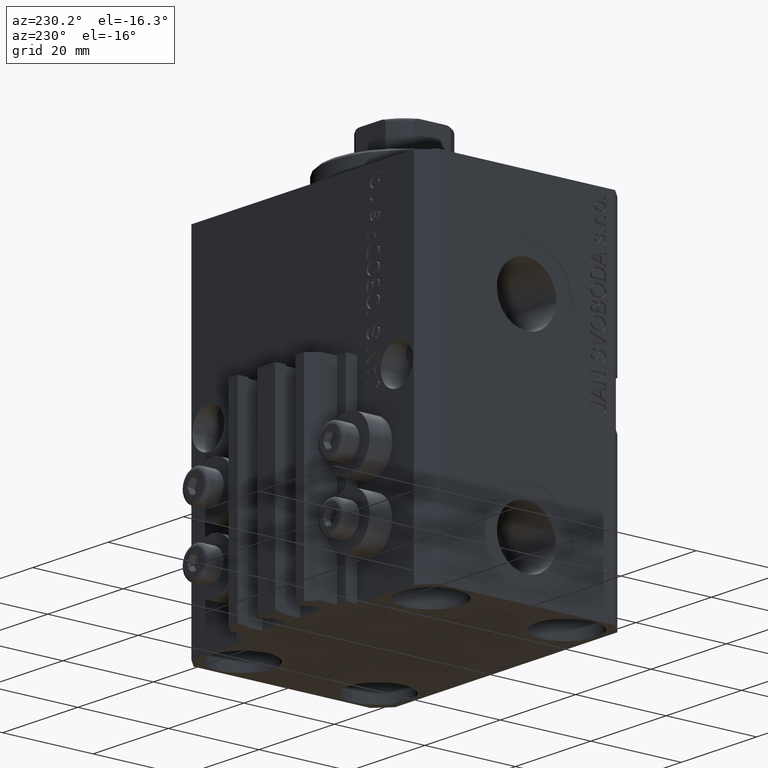
[diagram: clean part render]
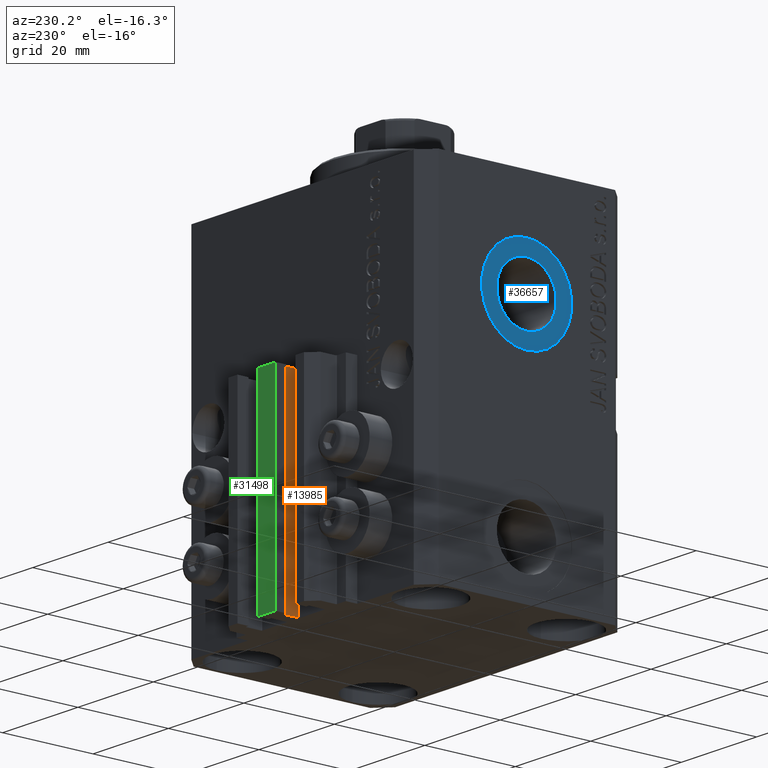
[diagram: same view with three faces highlighted in distinct colors, each labeled with its STEP entity id]
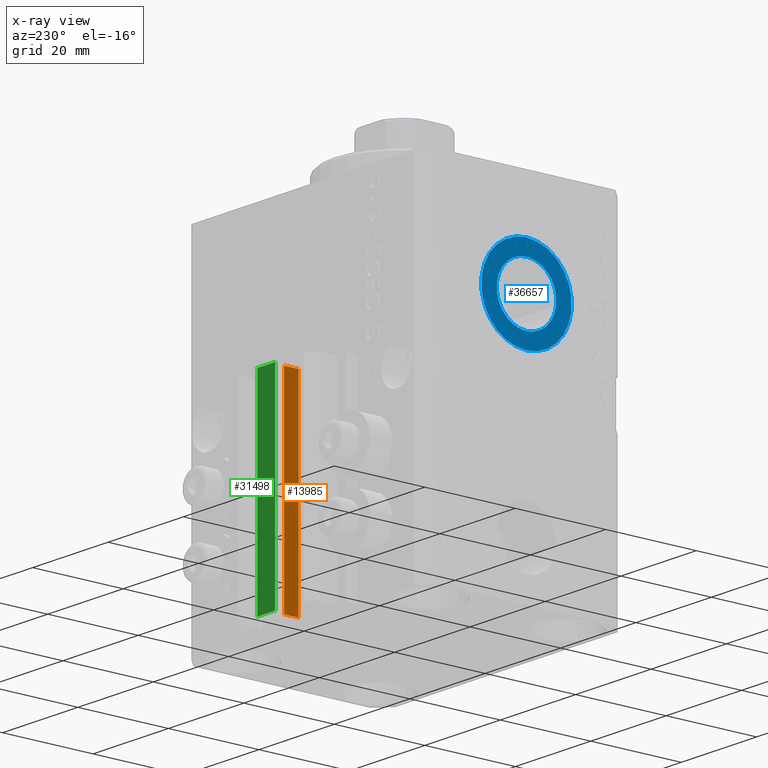
[diagram: x-ray of the same camera — body ghosted, the three highlighted faces saturated]
A machine part, auxiliary view with three faces highlighted in distinct colors.
The next image is the same camera in x-ray (body ghosted, the three faces saturated) — at least one of them is partly hidden behind the body in this view.
Their STEP definitions:

[orange] entity #13985 — the highlighted planar face has unit normal (-1, 0, 0).
#1227 = LINE ( 'NONE', #4572, #13105 ) ;
#1861 = LINE ( 'NONE', #27383, #38176 ) ;
#4572 = CARTESIAN_POINT ( 'NONE',  ( -1.600000000000000533, 27.89999999999950120, -33.00000000000000000 ) ) ;
#9751 = DIRECTION ( 'NONE',  ( -1.000000000000000000, 6.776263578034385456E-17, 0.000000000000000000 ) ) ;
#10214 = CARTESIAN_POINT ( 'NONE',  ( -1.600000000000000533, 27.89999999999950120, -77.00000000000000000 ) ) ;
#10689 = DIRECTION ( 'NONE',  ( -6.776263578034385456E-17, -1.000000000000000000, 0.000000000000000000 ) ) ;
#11161 = CARTESIAN_POINT ( 'NONE',  ( -1.600000000000000755, 24.69999999999949480, -77.00000000000000000 ) ) ;
#12447 = DIRECTION ( 'NONE',  ( -6.776263578034385456E-17, -1.000000000000000000, 0.000000000000000000 ) ) ;
#13009 = VECTOR ( 'NONE', #26480, 1000.000000000000000 ) ;
#13105 = VECTOR ( 'NONE', #12447, 1000.000000000000000 ) ;
#13570 = DIRECTION ( 'NONE',  ( 0.000000000000000000, 0.000000000000000000, 1.000000000000000000 ) ) ;
#13985 = ADVANCED_FACE ( 'NONE', ( #46217 ), #24042, .T. ) ;
#18466 = ORIENTED_EDGE ( 'NONE', *, *, #41684, .T. ) ;
#20019 = CARTESIAN_POINT ( 'NONE',  ( -1.600000000000003197, 27.89999999999950120, -77.00000000000000000 ) ) ;
#23778 = VERTEX_POINT ( 'NONE', #30183 ) ;
#24042 = PLANE ( 'NONE',  #37775 ) ;
#24511 = DIRECTION ( 'NONE',  ( -6.776263578034385456E-17, -1.000000000000000000, 0.000000000000000000 ) ) ;
#26179 = EDGE_LOOP ( 'NONE', ( #28960, #27192, #18466, #27483 ) ) ;
#26480 = DIRECTION ( 'NONE',  ( 0.000000000000000000, 0.000000000000000000, 1.000000000000000000 ) ) ;
#27192 = ORIENTED_EDGE ( 'NONE', *, *, #33828, .F. ) ;
#27383 = CARTESIAN_POINT ( 'NONE',  ( -1.600000000000003197, 27.89999999999950120, -77.00000000000000000 ) ) ;
#27483 = ORIENTED_EDGE ( 'NONE', *, *, #31551, .T. ) ;
#28960 = ORIENTED_EDGE ( 'NONE', *, *, #34832, .F. ) ;
#29489 = CARTESIAN_POINT ( 'NONE',  ( -1.600000000000000533, 27.89999999999950120, -77.00000000000000000 ) ) ;
#29957 = LINE ( 'NONE', #29489, #44609 ) ;
#30054 = VERTEX_POINT ( 'NONE', #20019 ) ;
#30183 = CARTESIAN_POINT ( 'NONE',  ( -1.600000000000003197, 27.89999999999950120, -33.00000000000000000 ) ) ;
#31551 = EDGE_CURVE ( 'NONE', #38864, #39184, #44853, .T. ) ;
#33828 = EDGE_CURVE ( 'NONE', #30054, #23778, #1861, .T. ) ;
#34832 = EDGE_CURVE ( 'NONE', #23778, #39184, #1227, .T. ) ;
#37775 = AXIS2_PLACEMENT_3D ( 'NONE', #10214, #9751, #24511 ) ;
#38176 = VECTOR ( 'NONE', #13570, 1000.000000000000000 ) ;
#38864 = VERTEX_POINT ( 'NONE', #11161 ) ;
#39184 = VERTEX_POINT ( 'NONE', #46876 ) ;
#41684 = EDGE_CURVE ( 'NONE', #30054, #38864, #29957, .T. ) ;
#44609 = VECTOR ( 'NONE', #10689, 1000.000000000000000 ) ;
#44614 = CARTESIAN_POINT ( 'NONE',  ( -1.600000000000000755, 24.69999999999949480, -77.00000000000000000 ) ) ;
#44853 = LINE ( 'NONE', #44614, #13009 ) ;
#46217 = FACE_OUTER_BOUND ( 'NONE', #26179, .T. ) ;
#46876 = CARTESIAN_POINT ( 'NONE',  ( -1.600000000000000755, 24.69999999999949480, -33.00000000000000000 ) ) ;

[blue] entity #36657 — the highlighted planar face has unit normal (-1, 0, 0).
#143 = AXIS2_PLACEMENT_3D ( 'NONE', #12875, #31215, #9291 ) ;
#2852 = CARTESIAN_POINT ( 'NONE',  ( -32.39999999999650271, 1.224646799147353059E-15, -32.00000000000000000 ) ) ;
#3265 = CARTESIAN_POINT ( 'NONE',  ( -32.39999999999650271, 0.000000000000000000, -22.00000000000000000 ) ) ;
#3266 = AXIS2_PLACEMENT_3D ( 'NONE', #28108, #13110, #38835 ) ;
#5421 = CARTESIAN_POINT ( 'NONE',  ( -32.39999999999650271, 0.000000000000000000, -11.99999999999999822 ) ) ;
#6143 = ORIENTED_EDGE ( 'NONE', *, *, #31703, .T. ) ;
#6647 = FACE_OUTER_BOUND ( 'NONE', #38841, .T. ) ;
#7492 = VERTEX_POINT ( 'NONE', #5421 ) ;
#7783 = CIRCLE ( 'NONE', #143, 6.579999999999999183 ) ;
#8473 = VERTEX_POINT ( 'NONE', #14066 ) ;
#9040 = CARTESIAN_POINT ( 'NONE',  ( -32.39999999999650271, 0.000000000000000000, -15.41999999999999993 ) ) ;
#9291 = DIRECTION ( 'NONE',  ( 0.000000000000000000, 0.000000000000000000, 1.000000000000000000 ) ) ;
#9545 = CARTESIAN_POINT ( 'NONE',  ( -32.39999999999650271, 0.000000000000000000, -22.00000000000000000 ) ) ;
#12875 = CARTESIAN_POINT ( 'NONE',  ( -32.39999999999650271, 0.000000000000000000, -22.00000000000000000 ) ) ;
#13110 = DIRECTION ( 'NONE',  ( -1.000000000000000000, 0.000000000000000000, 0.000000000000000000 ) ) ;
#14066 = CARTESIAN_POINT ( 'NONE',  ( -32.39999999999650271, 8.058175938389579572E-16, -28.57999999999999829 ) ) ;
#14706 = EDGE_CURVE ( 'NONE', #7492, #32676, #29425, .T. ) ;
#17627 = CARTESIAN_POINT ( 'NONE',  ( -32.39999999999650271, 0.000000000000000000, -22.00000000000000000 ) ) ;
#18760 = ORIENTED_EDGE ( 'NONE', *, *, #35935, .F. ) ;
#22040 = EDGE_LOOP ( 'NONE', ( #18760, #32246 ) ) ;
#23430 = VERTEX_POINT ( 'NONE', #9040 ) ;
#24518 = DIRECTION ( 'NONE',  ( 0.000000000000000000, 0.000000000000000000, 1.000000000000000000 ) ) ;
#24531 = PLANE ( 'NONE',  #3266 ) ;
#24552 = DIRECTION ( 'NONE',  ( 0.000000000000000000, 0.000000000000000000, 1.000000000000000000 ) ) ;
#25157 = AXIS2_PLACEMENT_3D ( 'NONE', #9545, #43605, #24552 ) ;
#26672 = CIRCLE ( 'NONE', #25157, 10.00000000000000000 ) ;
#27864 = FACE_BOUND ( 'NONE', #22040, .T. ) ;
#28108 = CARTESIAN_POINT ( 'NONE',  ( -32.39999999999650271, 0.000000000000000000, -22.00000000000000000 ) ) ;
#29425 = CIRCLE ( 'NONE', #33243, 10.00000000000000000 ) ;
#31215 = DIRECTION ( 'NONE',  ( -1.000000000000000000, 0.000000000000000000, 0.000000000000000000 ) ) ;
#31671 = CIRCLE ( 'NONE', #37759, 6.579999999999999183 ) ;
#31703 = EDGE_CURVE ( 'NONE', #32676, #7492, #26672, .T. ) ;
#32158 = DIRECTION ( 'NONE',  ( 0.000000000000000000, 0.000000000000000000, 1.000000000000000000 ) ) ;
#32246 = ORIENTED_EDGE ( 'NONE', *, *, #43245, .F. ) ;
#32383 = DIRECTION ( 'NONE',  ( -1.000000000000000000, 0.000000000000000000, 0.000000000000000000 ) ) ;
#32676 = VERTEX_POINT ( 'NONE', #2852 ) ;
#33243 = AXIS2_PLACEMENT_3D ( 'NONE', #3265, #46460, #24518 ) ;
#35151 = ORIENTED_EDGE ( 'NONE', *, *, #14706, .T. ) ;
#35935 = EDGE_CURVE ( 'NONE', #23430, #8473, #7783, .T. ) ;
#36657 = ADVANCED_FACE ( 'NONE', ( #27864, #6647 ), #24531, .T. ) ;
#37759 = AXIS2_PLACEMENT_3D ( 'NONE', #17627, #32383, #32158 ) ;
#38835 = DIRECTION ( 'NONE',  ( 0.000000000000000000, 0.000000000000000000, 1.000000000000000000 ) ) ;
#38841 = EDGE_LOOP ( 'NONE', ( #35151, #6143 ) ) ;
#43245 = EDGE_CURVE ( 'NONE', #8473, #23430, #31671, .T. ) ;
#43605 = DIRECTION ( 'NONE',  ( -1.000000000000000000, 0.000000000000000000, 0.000000000000000000 ) ) ;
#46460 = DIRECTION ( 'NONE',  ( -1.000000000000000000, 0.000000000000000000, 0.000000000000000000 ) ) ;

[green] entity #31498 — the highlighted planar face has unit normal (0, -1, 0).
#607 = CARTESIAN_POINT ( 'NONE',  ( -2.350000000000003197, 30.49999999999949907, -77.00000000000000000 ) ) ;
#795 = AXIS2_PLACEMENT_3D ( 'NONE', #23145, #15063, #29581 ) ;
#2610 = CARTESIAN_POINT ( 'NONE',  ( -2.350000000000003197, 30.49999999999949907, -77.00000000000000000 ) ) ;
#3203 = EDGE_CURVE ( 'NONE', #36846, #23405, #39445, .T. ) ;
#4062 = FACE_OUTER_BOUND ( 'NONE', #39275, .T. ) ;
#7428 = VERTEX_POINT ( 'NONE', #35487 ) ;
#9213 = ORIENTED_EDGE ( 'NONE', *, *, #37581, .F. ) ;
#12931 = DIRECTION ( 'NONE',  ( 1.000000000000000000, 0.000000000000000000, 0.000000000000000000 ) ) ;
#13375 = ORIENTED_EDGE ( 'NONE', *, *, #3203, .F. ) ;
#15063 = DIRECTION ( 'NONE',  ( 0.000000000000000000, -1.000000000000000000, 0.000000000000000000 ) ) ;
#18129 = VERTEX_POINT ( 'NONE', #607 ) ;
#18273 = VECTOR ( 'NONE', #47159, 1000.000000000000000 ) ;
#19061 = CARTESIAN_POINT ( 'NONE',  ( 2.349999999999999645, 30.49999999999949907, -33.00000000000000000 ) ) ;
#19632 = EDGE_CURVE ( 'NONE', #18129, #7428, #42459, .T. ) ;
#21333 = CARTESIAN_POINT ( 'NONE',  ( 2.349999999999999645, 30.49999999999949907, -77.00000000000000000 ) ) ;
#22678 = PLANE ( 'NONE',  #795 ) ;
#23145 = CARTESIAN_POINT ( 'NONE',  ( -2.350000000000003197, 30.49999999999949907, -77.00000000000000000 ) ) ;
#23405 = VERTEX_POINT ( 'NONE', #19061 ) ;
#24131 = VECTOR ( 'NONE', #27899, 1000.000000000000000 ) ;
#25485 = EDGE_CURVE ( 'NONE', #7428, #23405, #38593, .T. ) ;
#27899 = DIRECTION ( 'NONE',  ( 0.000000000000000000, 0.000000000000000000, 1.000000000000000000 ) ) ;
#29581 = DIRECTION ( 'NONE',  ( 0.000000000000000000, -0.000000000000000000, -1.000000000000000000 ) ) ;
#31047 = CARTESIAN_POINT ( 'NONE',  ( -2.350000000000003197, 30.49999999999949907, -77.00000000000000000 ) ) ;
#31498 = ADVANCED_FACE ( 'NONE', ( #4062 ), #22678, .F. ) ;
#35487 = CARTESIAN_POINT ( 'NONE',  ( -2.350000000000003197, 30.49999999999949907, -33.00000000000000000 ) ) ;
#35858 = DIRECTION ( 'NONE',  ( 0.000000000000000000, 0.000000000000000000, 1.000000000000000000 ) ) ;
#36846 = VERTEX_POINT ( 'NONE', #43585 ) ;
#37581 = EDGE_CURVE ( 'NONE', #18129, #36846, #45598, .T. ) ;
#38529 = VECTOR ( 'NONE', #35858, 1000.000000000000000 ) ;
#38593 = LINE ( 'NONE', #42875, #18273 ) ;
#39275 = EDGE_LOOP ( 'NONE', ( #43496, #13375, #9213, #45074 ) ) ;
#39445 = LINE ( 'NONE', #21333, #38529 ) ;
#41367 = VECTOR ( 'NONE', #12931, 1000.000000000000000 ) ;
#42459 = LINE ( 'NONE', #2610, #24131 ) ;
#42875 = CARTESIAN_POINT ( 'NONE',  ( -2.350000000000003197, 30.49999999999949907, -33.00000000000000000 ) ) ;
#43496 = ORIENTED_EDGE ( 'NONE', *, *, #25485, .T. ) ;
#43585 = CARTESIAN_POINT ( 'NONE',  ( 2.349999999999999645, 30.49999999999949907, -77.00000000000000000 ) ) ;
#45074 = ORIENTED_EDGE ( 'NONE', *, *, #19632, .T. ) ;
#45598 = LINE ( 'NONE', #31047, #41367 ) ;
#47159 = DIRECTION ( 'NONE',  ( 1.000000000000000000, 0.000000000000000000, 0.000000000000000000 ) ) ;